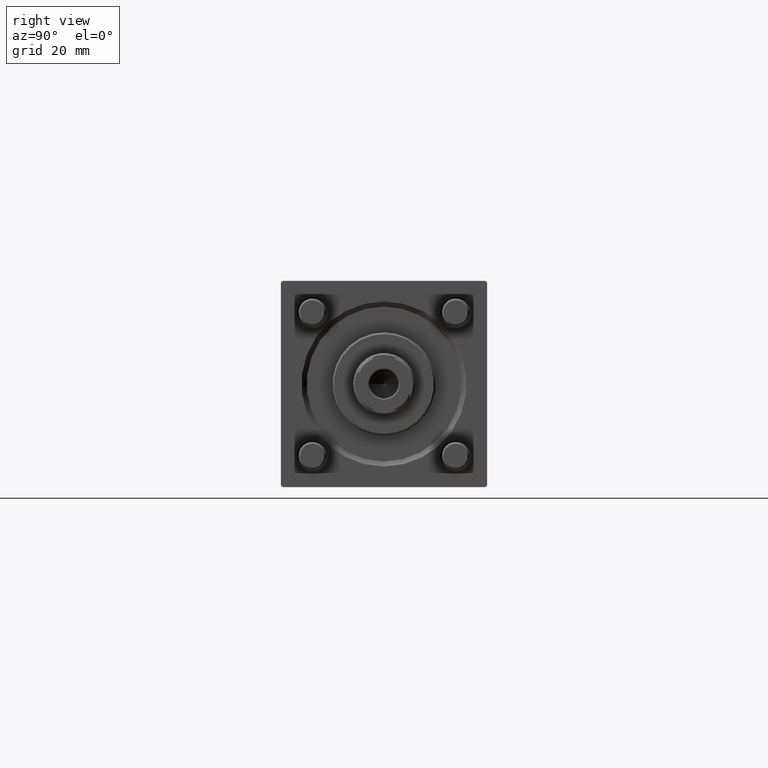
[diagram: clean part render]
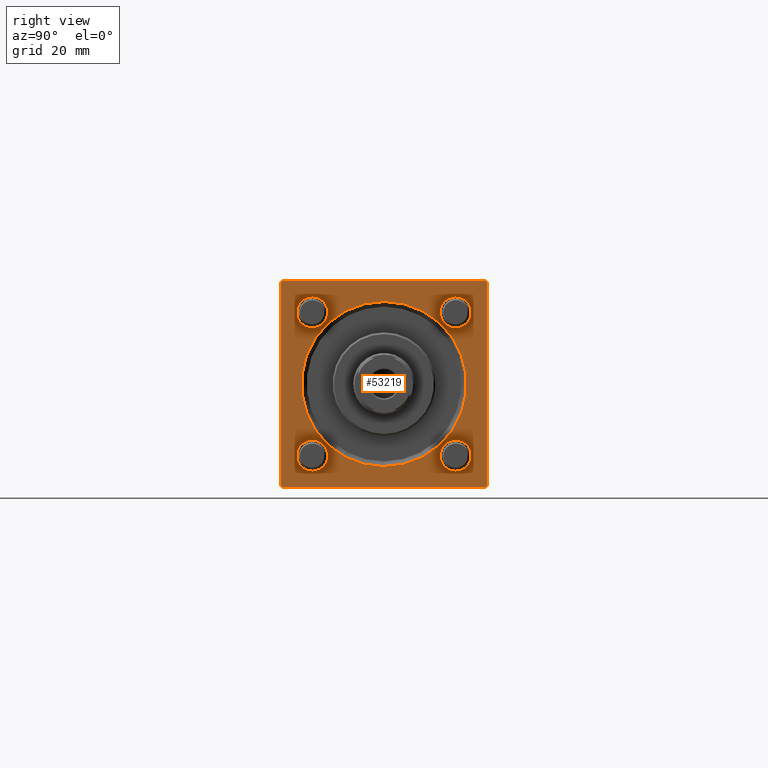
[diagram: same view with one face highlighted and labeled with its STEP entity id]
A machine part, right view. The second image highlights one B-rep face of the part: STEP entity #53219.
In plain terms, the highlighted planar face has unit normal (-1, 0, 0).
Its self-contained STEP definition (entity closure, byte-faithful):
#449 = EDGE_LOOP ( 'NONE', ( #6640, #15930 ) ) ;
#534 = CARTESIAN_POINT ( 'NONE',  ( 148.0000000000000000, -30.00000000000000000, 29.49999999999999289 ) ) ;
#693 = VECTOR ( 'NONE', #47610, 1000.000000000000114 ) ;
#734 = VECTOR ( 'NONE', #4648, 1000.000000000000000 ) ;
#775 = CARTESIAN_POINT ( 'NONE',  ( 148.0000000000000000, -29.50000000000000000, 29.99999999999999289 ) ) ;
#1050 = CARTESIAN_POINT ( 'NONE',  ( 148.0000000000000000, 2.939152317953652628E-15, 24.00000000000003908 ) ) ;
#1066 = EDGE_CURVE ( 'NONE', #30601, #5275, #15832, .T. ) ;
#1467 = EDGE_CURVE ( 'NONE', #54656, #39619, #38999, .T. ) ;
#1537 = AXIS2_PLACEMENT_3D ( 'NONE', #11087, #23727, #2189 ) ;
#2067 = DIRECTION ( 'NONE',  ( 0.000000000000000000, 0.000000000000000000, -1.000000000000000000 ) ) ;
#2189 = DIRECTION ( 'NONE',  ( 0.000000000000000000, 0.000000000000000000, 1.000000000000000000 ) ) ;
#2199 = CARTESIAN_POINT ( 'NONE',  ( 148.0000000000000000, 0.000000000000000000, 0.000000000000000000 ) ) ;
#3144 = EDGE_CURVE ( 'NONE', #39619, #54656, #42714, .T. ) ;
#3148 = EDGE_CURVE ( 'NONE', #8328, #49368, #14273, .T. ) ;
#3348 = CIRCLE ( 'NONE', #1537, 24.00000000000003908 ) ;
#3522 = FACE_BOUND ( 'NONE', #48436, .T. ) ;
#4209 = AXIS2_PLACEMENT_3D ( 'NONE', #56078, #56646, #16421 ) ;
#4615 = ORIENTED_EDGE ( 'NONE', *, *, #26480, .T. ) ;
#4648 = DIRECTION ( 'NONE',  ( 0.000000000000000000, -1.000000000000000000, -1.156482317317871478E-16 ) ) ;
#5140 = AXIS2_PLACEMENT_3D ( 'NONE', #11795, #24418, #33038 ) ;
#5275 = VERTEX_POINT ( 'NONE', #51861 ) ;
#5417 = ORIENTED_EDGE ( 'NONE', *, *, #39994, .T. ) ;
#5613 = EDGE_CURVE ( 'NONE', #48730, #7856, #50112, .T. ) ;
#5669 = ORIENTED_EDGE ( 'NONE', *, *, #9558, .T. ) ;
#5723 = ORIENTED_EDGE ( 'NONE', *, *, #12945, .T. ) ;
#6183 = DIRECTION ( 'NONE',  ( 0.000000000000000000, 0.000000000000000000, -1.000000000000000000 ) ) ;
#6376 = VERTEX_POINT ( 'NONE', #1050 ) ;
#6640 = ORIENTED_EDGE ( 'NONE', *, *, #26635, .T. ) ;
#7104 = CARTESIAN_POINT ( 'NONE',  ( 148.0000000000000000, -20.84999999999999076, -16.34999999999998721 ) ) ;
#7160 = VERTEX_POINT ( 'NONE', #10525 ) ;
#7354 = DIRECTION ( 'NONE',  ( 0.000000000000000000, 0.7071067811865474617, -0.7071067811865474617 ) ) ;
#7422 = EDGE_LOOP ( 'NONE', ( #4615, #5723, #40724, #16400, #28048, #5669, #12305, #10951 ) ) ;
#7678 = LINE ( 'NONE', #20885, #693 ) ;
#7856 = VERTEX_POINT ( 'NONE', #8158 ) ;
#8056 = AXIS2_PLACEMENT_3D ( 'NONE', #43156, #38822, #18678 ) ;
#8158 = CARTESIAN_POINT ( 'NONE',  ( 148.0000000000000000, 20.84999999999999787, -25.35000000000001918 ) ) ;
#8160 = DIRECTION ( 'NONE',  ( -1.000000000000000000, 0.000000000000000000, -0.000000000000000000 ) ) ;
#8167 = CIRCLE ( 'NONE', #28329, 4.500000000000017764 ) ;
#8328 = VERTEX_POINT ( 'NONE', #35053 ) ;
#8669 = CARTESIAN_POINT ( 'NONE',  ( 148.0000000000000000, 30.00000000000000000, -29.99999999999999289 ) ) ;
#8849 = CARTESIAN_POINT ( 'NONE',  ( 148.0000000000000000, -20.84999999999999076, 25.35000000000002274 ) ) ;
#9051 = ORIENTED_EDGE ( 'NONE', *, *, #3144, .T. ) ;
#9433 = AXIS2_PLACEMENT_3D ( 'NONE', #2199, #19715, #37230 ) ;
#9558 = EDGE_CURVE ( 'NONE', #30601, #7160, #45565, .T. ) ;
#10525 = CARTESIAN_POINT ( 'NONE',  ( 148.0000000000000000, 29.50000000000000000, 30.00000000000000000 ) ) ;
#10951 = ORIENTED_EDGE ( 'NONE', *, *, #36853, .T. ) ;
#11087 = CARTESIAN_POINT ( 'NONE',  ( 148.0000000000000000, 0.000000000000000000, 0.000000000000000000 ) ) ;
#11795 = CARTESIAN_POINT ( 'NONE',  ( 148.0000000000000000, 20.84999999999999787, -20.85000000000000142 ) ) ;
#12118 = DIRECTION ( 'NONE',  ( 0.000000000000000000, 0.000000000000000000, 1.000000000000000000 ) ) ;
#12305 = ORIENTED_EDGE ( 'NONE', *, *, #30960, .T. ) ;
#12392 = DIRECTION ( 'NONE',  ( -1.000000000000000000, 0.000000000000000000, -0.000000000000000000 ) ) ;
#12406 = FACE_BOUND ( 'NONE', #46195, .T. ) ;
#12945 = EDGE_CURVE ( 'NONE', #33827, #44172, #55043, .T. ) ;
#12957 = CARTESIAN_POINT ( 'NONE',  ( 148.0000000000000000, -20.84999999999999076, -20.85000000000000497 ) ) ;
#13237 = CIRCLE ( 'NONE', #26069, 4.500000000000017764 ) ;
#13760 = CARTESIAN_POINT ( 'NONE',  ( 148.0000000000000000, 20.84999999999999787, 16.34999999999998366 ) ) ;
#14273 = CIRCLE ( 'NONE', #47311, 4.500000000000017764 ) ;
#14349 = CIRCLE ( 'NONE', #21693, 4.500000000000017764 ) ;
#15072 = VERTEX_POINT ( 'NONE', #50953 ) ;
#15366 = VECTOR ( 'NONE', #40661, 1000.000000000000114 ) ;
#15832 = LINE ( 'NONE', #50355, #17839 ) ;
#15887 = ORIENTED_EDGE ( 'NONE', *, *, #37040, .T. ) ;
#15930 = ORIENTED_EDGE ( 'NONE', *, *, #5613, .T. ) ;
#15941 = CARTESIAN_POINT ( 'NONE',  ( 148.0000000000000000, 0.000000000000000000, -24.00000000000003908 ) ) ;
#16044 = AXIS2_PLACEMENT_3D ( 'NONE', #56560, #56274, #38167 ) ;
#16400 = ORIENTED_EDGE ( 'NONE', *, *, #20909, .T. ) ;
#16421 = DIRECTION ( 'NONE',  ( 0.000000000000000000, 0.000000000000000000, 1.000000000000000000 ) ) ;
#16729 = CARTESIAN_POINT ( 'NONE',  ( 148.0000000000000000, 20.84999999999999787, 25.35000000000001918 ) ) ;
#16881 = EDGE_CURVE ( 'NONE', #54024, #6376, #36951, .T. ) ;
#16923 = VECTOR ( 'NONE', #6183, 1000.000000000000000 ) ;
#17157 = DIRECTION ( 'NONE',  ( -0.000000000000000000, 0.7071067811865474617, 0.7071067811865474617 ) ) ;
#17839 = VECTOR ( 'NONE', #2067, 1000.000000000000000 ) ;
#18007 = DIRECTION ( 'NONE',  ( -1.000000000000000000, 0.000000000000000000, -0.000000000000000000 ) ) ;
#18037 = VERTEX_POINT ( 'NONE', #21148 ) ;
#18678 = DIRECTION ( 'NONE',  ( -0.000000000000000000, 0.000000000000000000, 1.000000000000000000 ) ) ;
#19100 = AXIS2_PLACEMENT_3D ( 'NONE', #23984, #19677, #37198 ) ;
#19677 = DIRECTION ( 'NONE',  ( -1.000000000000000000, 0.000000000000000000, -0.000000000000000000 ) ) ;
#19715 = DIRECTION ( 'NONE',  ( -1.000000000000000000, 0.000000000000000000, -0.000000000000000000 ) ) ;
#20885 = CARTESIAN_POINT ( 'NONE',  ( 148.0000000000000000, -30.00000000000000000, 29.49999999999999289 ) ) ;
#20909 = EDGE_CURVE ( 'NONE', #15072, #5275, #56546, .T. ) ;
#21003 = DIRECTION ( 'NONE',  ( 0.000000000000000000, -1.000000000000000000, -1.156482317317871478E-16 ) ) ;
#21034 = FACE_BOUND ( 'NONE', #449, .T. ) ;
#21148 = CARTESIAN_POINT ( 'NONE',  ( 148.0000000000000000, -20.84999999999999076, 16.34999999999998721 ) ) ;
#21693 = AXIS2_PLACEMENT_3D ( 'NONE', #41340, #46216, #54569 ) ;
#23609 = VERTEX_POINT ( 'NONE', #8849 ) ;
#23727 = DIRECTION ( 'NONE',  ( -1.000000000000000000, 0.000000000000000000, -0.000000000000000000 ) ) ;
#23984 = CARTESIAN_POINT ( 'NONE',  ( 148.0000000000000000, -20.84999999999999076, 20.85000000000000497 ) ) ;
#24418 = DIRECTION ( 'NONE',  ( -1.000000000000000000, 0.000000000000000000, -0.000000000000000000 ) ) ;
#24516 = CARTESIAN_POINT ( 'NONE',  ( 148.0000000000000000, 30.00000000000000000, 29.50000000000000000 ) ) ;
#24550 = CIRCLE ( 'NONE', #19100, 4.500000000000017764 ) ;
#25619 = PLANE ( 'NONE',  #8056 ) ;
#26069 = AXIS2_PLACEMENT_3D ( 'NONE', #51558, #8160, #29419 ) ;
#26480 = EDGE_CURVE ( 'NONE', #51051, #33827, #37176, .T. ) ;
#26635 = EDGE_CURVE ( 'NONE', #7856, #48730, #13237, .T. ) ;
#26974 = VECTOR ( 'NONE', #17157, 1000.000000000000114 ) ;
#28048 = ORIENTED_EDGE ( 'NONE', *, *, #1066, .F. ) ;
#28329 = AXIS2_PLACEMENT_3D ( 'NONE', #30943, #18007, #44175 ) ;
#29164 = CARTESIAN_POINT ( 'NONE',  ( 148.0000000000000000, -29.50000000000000000, -30.00000000000000000 ) ) ;
#29419 = DIRECTION ( 'NONE',  ( 0.000000000000000000, 0.000000000000000000, 1.000000000000000000 ) ) ;
#30101 = CARTESIAN_POINT ( 'NONE',  ( 148.0000000000000000, 30.00000000000000000, -29.49999999999999289 ) ) ;
#30156 = CARTESIAN_POINT ( 'NONE',  ( 148.0000000000000000, 30.00000000000000000, 30.00000000000000000 ) ) ;
#30601 = VERTEX_POINT ( 'NONE', #24516 ) ;
#30943 = CARTESIAN_POINT ( 'NONE',  ( 148.0000000000000000, -20.84999999999999076, -20.85000000000000497 ) ) ;
#30960 = EDGE_CURVE ( 'NONE', #7160, #48259, #52017, .T. ) ;
#33038 = DIRECTION ( 'NONE',  ( 0.000000000000000000, 0.000000000000000000, 1.000000000000000000 ) ) ;
#33631 = ORIENTED_EDGE ( 'NONE', *, *, #48311, .T. ) ;
#33827 = VERTEX_POINT ( 'NONE', #35920 ) ;
#35053 = CARTESIAN_POINT ( 'NONE',  ( 148.0000000000000000, -20.84999999999999076, -25.35000000000002274 ) ) ;
#35920 = CARTESIAN_POINT ( 'NONE',  ( 148.0000000000000000, -30.00000000000000000, -29.49999999999998579 ) ) ;
#36853 = EDGE_CURVE ( 'NONE', #48259, #51051, #7678, .T. ) ;
#36951 = CIRCLE ( 'NONE', #9433, 24.00000000000003908 ) ;
#37040 = EDGE_CURVE ( 'NONE', #23609, #18037, #24550, .T. ) ;
#37176 = LINE ( 'NONE', #54728, #16923 ) ;
#37198 = DIRECTION ( 'NONE',  ( 0.000000000000000000, 0.000000000000000000, 1.000000000000000000 ) ) ;
#37230 = DIRECTION ( 'NONE',  ( 0.000000000000000000, 0.000000000000000000, 1.000000000000000000 ) ) ;
#37272 = EDGE_CURVE ( 'NONE', #15072, #44172, #43435, .T. ) ;
#37494 = CARTESIAN_POINT ( 'NONE',  ( 148.0000000000000000, 29.50000000000000000, 30.00000000000000000 ) ) ;
#38167 = DIRECTION ( 'NONE',  ( 0.000000000000000000, 0.000000000000000000, 1.000000000000000000 ) ) ;
#38194 = CARTESIAN_POINT ( 'NONE',  ( 148.0000000000000000, -29.50000000000000000, -30.00000000000000000 ) ) ;
#38391 = EDGE_LOOP ( 'NONE', ( #45707, #15887 ) ) ;
#38548 = FACE_BOUND ( 'NONE', #40698, .T. ) ;
#38671 = VECTOR ( 'NONE', #7354, 1000.000000000000114 ) ;
#38822 = DIRECTION ( 'NONE',  ( -1.000000000000000000, 0.000000000000000000, -0.000000000000000000 ) ) ;
#38999 = CIRCLE ( 'NONE', #16044, 4.500000000000017764 ) ;
#39619 = VERTEX_POINT ( 'NONE', #13760 ) ;
#39994 = EDGE_CURVE ( 'NONE', #49368, #8328, #8167, .T. ) ;
#40661 = DIRECTION ( 'NONE',  ( 0.000000000000000000, -0.7071067811865474617, 0.7071067811865474617 ) ) ;
#40698 = EDGE_LOOP ( 'NONE', ( #9051, #51159 ) ) ;
#40724 = ORIENTED_EDGE ( 'NONE', *, *, #37272, .F. ) ;
#41340 = CARTESIAN_POINT ( 'NONE',  ( 148.0000000000000000, -20.84999999999999076, 20.85000000000000497 ) ) ;
#42714 = CIRCLE ( 'NONE', #4209, 4.500000000000017764 ) ;
#43156 = CARTESIAN_POINT ( 'NONE',  ( 148.0000000000000000, 0.000000000000000000, 0.000000000000000000 ) ) ;
#43435 = LINE ( 'NONE', #8669, #734 ) ;
#44172 = VERTEX_POINT ( 'NONE', #38194 ) ;
#44175 = DIRECTION ( 'NONE',  ( 0.000000000000000000, 0.000000000000000000, 1.000000000000000000 ) ) ;
#45495 = VECTOR ( 'NONE', #21003, 1000.000000000000000 ) ;
#45565 = LINE ( 'NONE', #37494, #15366 ) ;
#45707 = ORIENTED_EDGE ( 'NONE', *, *, #49136, .T. ) ;
#46195 = EDGE_LOOP ( 'NONE', ( #55498, #33631 ) ) ;
#46216 = DIRECTION ( 'NONE',  ( -1.000000000000000000, 0.000000000000000000, -0.000000000000000000 ) ) ;
#47311 = AXIS2_PLACEMENT_3D ( 'NONE', #12957, #12392, #12118 ) ;
#47465 = FACE_OUTER_BOUND ( 'NONE', #7422, .T. ) ;
#47610 = DIRECTION ( 'NONE',  ( -0.000000000000000000, -0.7071067811865474617, -0.7071067811865474617 ) ) ;
#48259 = VERTEX_POINT ( 'NONE', #775 ) ;
#48311 = EDGE_CURVE ( 'NONE', #6376, #54024, #3348, .T. ) ;
#48436 = EDGE_LOOP ( 'NONE', ( #50759, #5417 ) ) ;
#48730 = VERTEX_POINT ( 'NONE', #56395 ) ;
#49136 = EDGE_CURVE ( 'NONE', #18037, #23609, #14349, .T. ) ;
#49368 = VERTEX_POINT ( 'NONE', #7104 ) ;
#50112 = CIRCLE ( 'NONE', #5140, 4.500000000000017764 ) ;
#50355 = CARTESIAN_POINT ( 'NONE',  ( 148.0000000000000000, 30.00000000000000000, 30.00000000000000000 ) ) ;
#50759 = ORIENTED_EDGE ( 'NONE', *, *, #3148, .T. ) ;
#50953 = CARTESIAN_POINT ( 'NONE',  ( 148.0000000000000000, 29.50000000000000000, -29.99999999999999289 ) ) ;
#51051 = VERTEX_POINT ( 'NONE', #534 ) ;
#51159 = ORIENTED_EDGE ( 'NONE', *, *, #1467, .T. ) ;
#51558 = CARTESIAN_POINT ( 'NONE',  ( 148.0000000000000000, 20.84999999999999787, -20.85000000000000142 ) ) ;
#51861 = CARTESIAN_POINT ( 'NONE',  ( 148.0000000000000000, 30.00000000000000000, -29.49999999999997868 ) ) ;
#52017 = LINE ( 'NONE', #30156, #45495 ) ;
#53219 = ADVANCED_FACE ( 'NONE', ( #3522, #21034, #38548, #56091, #12406, #47465 ), #25619, .F. ) ;
#54024 = VERTEX_POINT ( 'NONE', #15941 ) ;
#54569 = DIRECTION ( 'NONE',  ( 0.000000000000000000, 0.000000000000000000, 1.000000000000000000 ) ) ;
#54656 = VERTEX_POINT ( 'NONE', #16729 ) ;
#54728 = CARTESIAN_POINT ( 'NONE',  ( 148.0000000000000000, -30.00000000000000000, 29.99999999999999289 ) ) ;
#55043 = LINE ( 'NONE', #29164, #38671 ) ;
#55498 = ORIENTED_EDGE ( 'NONE', *, *, #16881, .T. ) ;
#56078 = CARTESIAN_POINT ( 'NONE',  ( 148.0000000000000000, 20.84999999999999787, 20.85000000000000142 ) ) ;
#56091 = FACE_BOUND ( 'NONE', #38391, .T. ) ;
#56274 = DIRECTION ( 'NONE',  ( -1.000000000000000000, 0.000000000000000000, -0.000000000000000000 ) ) ;
#56395 = CARTESIAN_POINT ( 'NONE',  ( 148.0000000000000000, 20.84999999999999787, -16.34999999999998366 ) ) ;
#56546 = LINE ( 'NONE', #30101, #26974 ) ;
#56560 = CARTESIAN_POINT ( 'NONE',  ( 148.0000000000000000, 20.84999999999999787, 20.85000000000000142 ) ) ;
#56646 = DIRECTION ( 'NONE',  ( -1.000000000000000000, 0.000000000000000000, -0.000000000000000000 ) ) ;